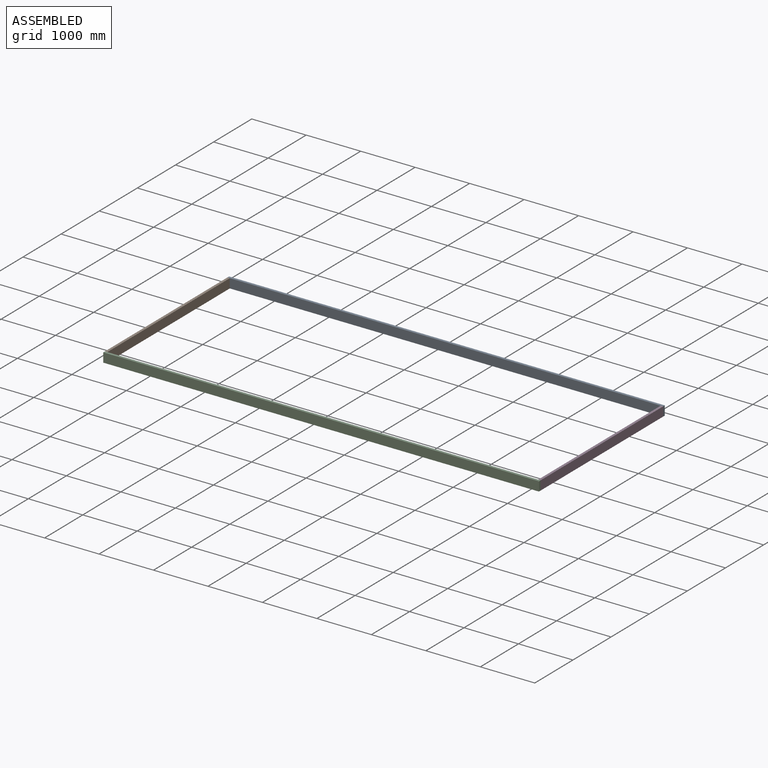
[diagram: assembled view]
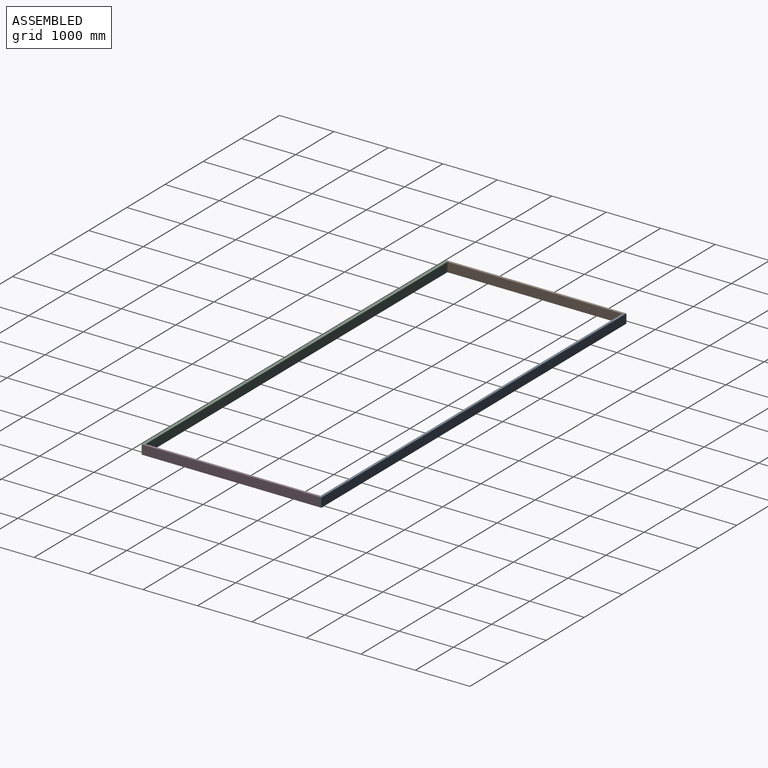
[diagram: assembled view, second angle]
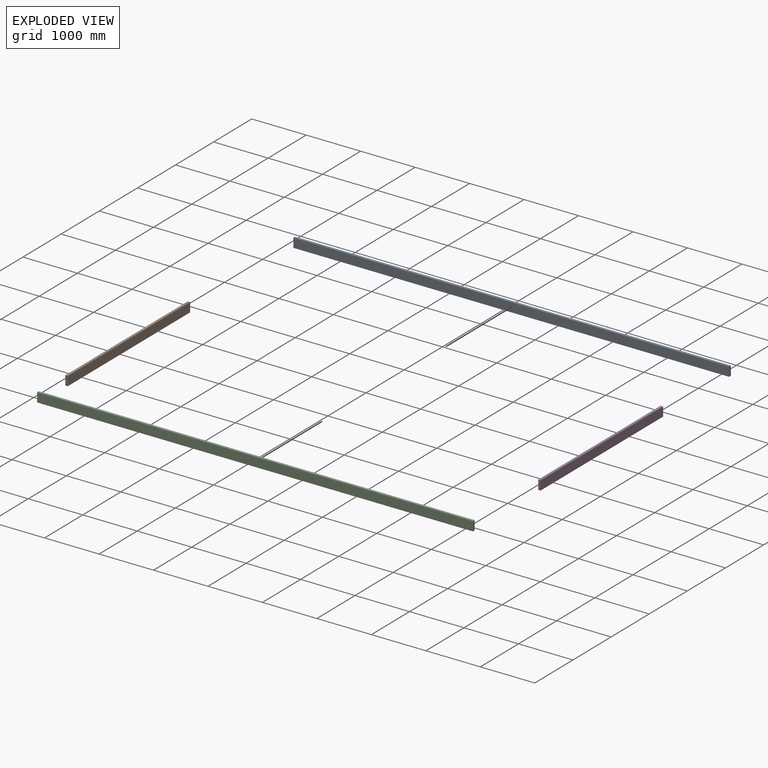
[diagram: exploded view]
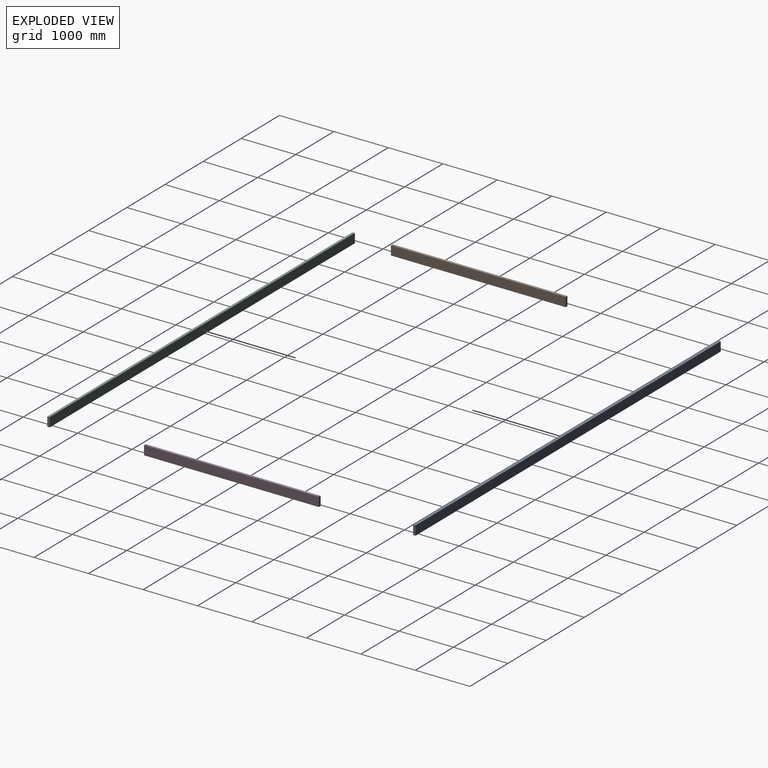
[diagram: exploded view, second angle]
ASSEMBLY  parts=4 mates=3
PART A: 6 faces, bbox 45x170x8000 mm
  f0: plane 8000x170mm, normal (-1,0,0), area 1360000mm2, adj f1,f3,f4,f5
  f1: plane 8000x45mm, normal (0,-1,0), area 360000mm2, adj f0,f2,f4,f5
  f2: plane 8000x170mm, normal (1,0,0), area 1360000mm2, adj f1,f3,f4,f5
  f3: plane 8000x45mm, normal (0,1,0), area 360000mm2, adj f0,f2,f4,f5
  f4: plane 170x45mm, normal (0,0,1), area 7650mm2, adj f0,f1,f2,f3
  f5: plane 170x45mm, normal (0,0,-1), area 7650mm2, adj f0,f1,f2,f3
PART B: 6 faces, bbox 45x170x3210 mm
  f0: plane 3210x170mm, normal (-1,0,0), area 545700mm2, adj f1,f3,f4,f5
  f1: plane 3210x45mm, normal (0,-1,0), area 144450mm2, adj f0,f2,f4,f5
  f2: plane 3210x170mm, normal (1,0,0), area 545700mm2, adj f1,f3,f4,f5
  f3: plane 3210x45mm, normal (0,1,0), area 144450mm2, adj f0,f2,f4,f5
  f4: plane 170x45mm, normal (0,0,1), area 7650mm2, adj f0,f1,f2,f3
  f5: plane 170x45mm, normal (0,0,-1), area 7650mm2, adj f0,f1,f2,f3
PART C: same geometry as A
PART D: same geometry as B
PLACE A rot(axis=(0.58,-0.58,-0.58),120deg) t=(8304.8,3889.28,-261.93)mm
PLACE B rot(axis=(1,0,0),90deg) t=(304.8,3641.28,-243.53)mm
PLACE C rot(axis=(0.58,-0.58,-0.58),120deg) t=(8304.8,634.28,-261.93)mm
PLACE D rot(axis=(-1,0,0),90deg) t=(8259.8,431.28,-73.53)mm
MATE fastened B.f4 <-> C.f0  axis (0,-1,0) through (304.8,431.28,-73.53)mm
MATE fastened B.f5 <-> A.f2  axis (0,1,0) through (304.8,3641.28,-73.53)mm
MATE fastened A.f2 <-> D.f4  axis (0,-1,0) through (8304.8,3641.28,-73.53)mm
